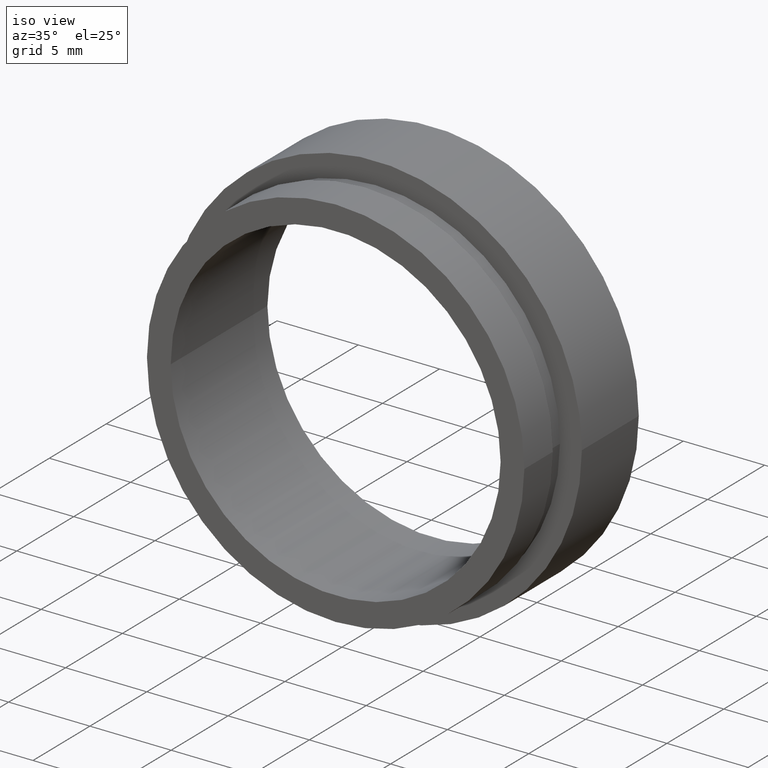
[diagram: clean part render]
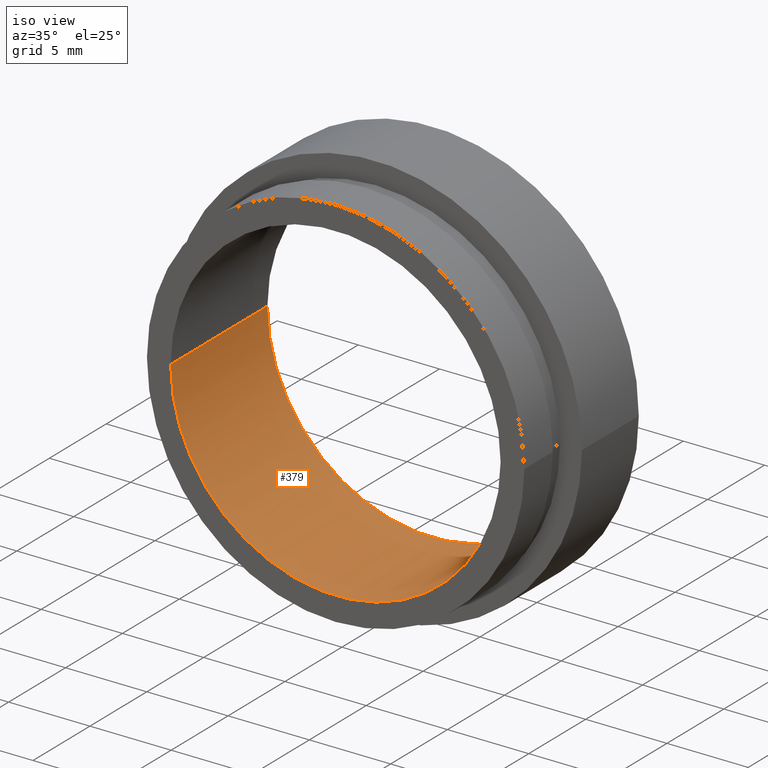
[diagram: same view with one face highlighted and labeled with its STEP entity id]
A machine part, iso view. The second image highlights one B-rep face of the part: STEP entity #379.
In plain terms, the highlighted cylindrical surface (partial cylindrical patch) has radius 10.15 mm, axis along (-0, 1, -0).
Its self-contained STEP definition (entity closure, byte-faithful):
#1 = AXIS2_PLACEMENT_3D ( 'NONE', #298, #390, #354 ) ;
#7 = VECTOR ( 'NONE', #274, 1000.000000000000000 ) ;
#24 = DIRECTION ( 'NONE',  ( -1.224646799147351000E-016, 1.000000000000000000, -0.0000000000000000000 ) ) ;
#38 = DIRECTION ( 'NONE',  ( -1.224646799147351000E-016, 1.000000000000000000, -0.0000000000000000000 ) ) ;
#45 = ORIENTED_EDGE ( 'NONE', *, *, #296, .T. ) ;
#49 = CYLINDRICAL_SURFACE ( 'NONE', #60, 10.15000000000000200 ) ;
#53 = DIRECTION ( 'NONE',  ( -1.000000000000000000, 0.0000000000000000000, 0.0000000000000000000 ) ) ;
#60 = AXIS2_PLACEMENT_3D ( 'NONE', #284, #24, #53 ) ;
#75 = ORIENTED_EDGE ( 'NONE', *, *, #257, .F. ) ;
#101 = EDGE_LOOP ( 'NONE', ( #272, #253, #45, #75 ) ) ;
#103 = CARTESIAN_POINT ( 'NONE',  ( -10.15000000000000000, -0.5454644111196662600, 0.0000000000000000000 ) ) ;
#107 = LINE ( 'NONE', #260, #366 ) ;
#149 = CARTESIAN_POINT ( 'NONE',  ( 10.15000000000000200, 16.88601823708207700, 1.243016501134563900E-015 ) ) ;
#173 = CARTESIAN_POINT ( 'NONE',  ( 2.134740942951285100E-015, -0.5454644111196650400, 0.0000000000000000000 ) ) ;
#180 = VERTEX_POINT ( 'NONE', #381 ) ;
#228 = AXIS2_PLACEMENT_3D ( 'NONE', #173, #409, #305 ) ;
#233 = EDGE_CURVE ( 'NONE', #304, #308, #403, .T. ) ;
#253 = ORIENTED_EDGE ( 'NONE', *, *, #369, .T. ) ;
#257 = EDGE_CURVE ( 'NONE', #308, #180, #107, .T. ) ;
#260 = CARTESIAN_POINT ( 'NONE',  ( -10.15000000000000200, 16.88601823708207700, 0.0000000000000000000 ) ) ;
#272 = ORIENTED_EDGE ( 'NONE', *, *, #233, .F. ) ;
#274 = DIRECTION ( 'NONE',  ( -1.224646799147351000E-016, 1.000000000000000000, -0.0000000000000000000 ) ) ;
#284 = CARTESIAN_POINT ( 'NONE',  ( 0.0000000000000000000, 16.88601823708207700, 0.0000000000000000000 ) ) ;
#294 = FACE_OUTER_BOUND ( 'NONE', #101, .T. ) ;
#296 = EDGE_CURVE ( 'NONE', #309, #180, #418, .T. ) ;
#298 = CARTESIAN_POINT ( 'NONE',  ( 1.093791163676037000E-015, 7.954535588880333700, 0.0000000000000000000 ) ) ;
#304 = VERTEX_POINT ( 'NONE', #411 ) ;
#305 = DIRECTION ( 'NONE',  ( -1.000000000000000000, -1.174997428309413300E-016, 0.0000000000000000000 ) ) ;
#308 = VERTEX_POINT ( 'NONE', #103 ) ;
#309 = VERTEX_POINT ( 'NONE', #317 ) ;
#317 = CARTESIAN_POINT ( 'NONE',  ( 10.15000000000000200, 7.954535588880335500, 1.243016501134563900E-015 ) ) ;
#354 = DIRECTION ( 'NONE',  ( -1.000000000000000000, -1.709087168450056200E-016, 0.0000000000000000000 ) ) ;
#366 = VECTOR ( 'NONE', #38, 1000.000000000000000 ) ;
#369 = EDGE_CURVE ( 'NONE', #304, #309, #370, .T. ) ;
#370 = LINE ( 'NONE', #149, #7 ) ;
#379 = ADVANCED_FACE ( 'NONE', ( #294 ), #49, .F. ) ;
#381 = CARTESIAN_POINT ( 'NONE',  ( -10.14999999999999900, 7.954535588880332000, 0.0000000000000000000 ) ) ;
#390 = DIRECTION ( 'NONE',  ( -1.224646799147351000E-016, 1.000000000000000000, -0.0000000000000000000 ) ) ;
#403 = CIRCLE ( 'NONE', #228, 10.15000000000000200 ) ;
#409 = DIRECTION ( 'NONE',  ( -1.224646799147351000E-016, 1.000000000000000000, -0.0000000000000000000 ) ) ;
#411 = CARTESIAN_POINT ( 'NONE',  ( 10.15000000000000400, -0.5454644111196639300, 1.243016501134563900E-015 ) ) ;
#418 = CIRCLE ( 'NONE', #1, 10.15000000000000000 ) ;